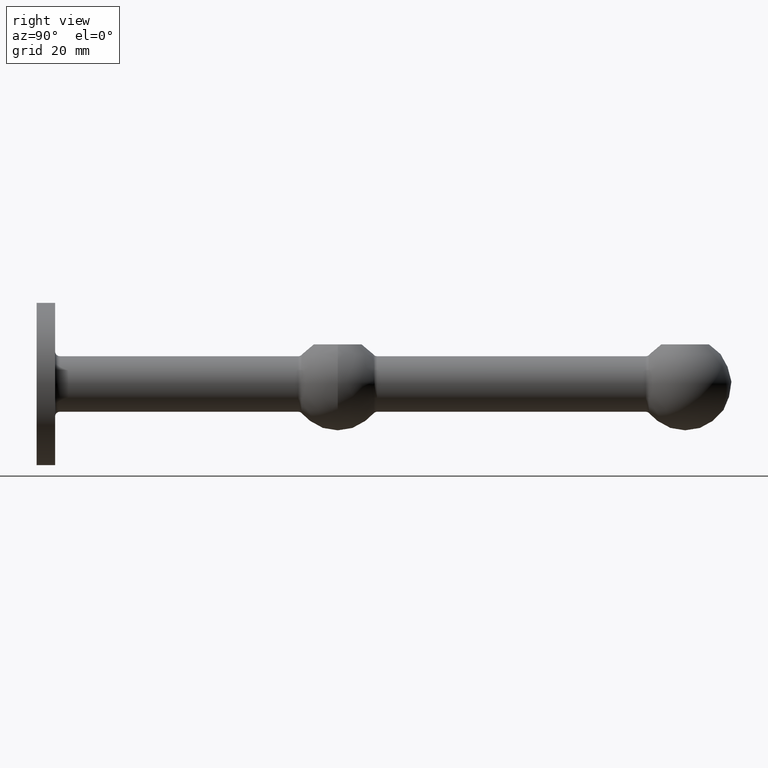
[diagram: clean part render]
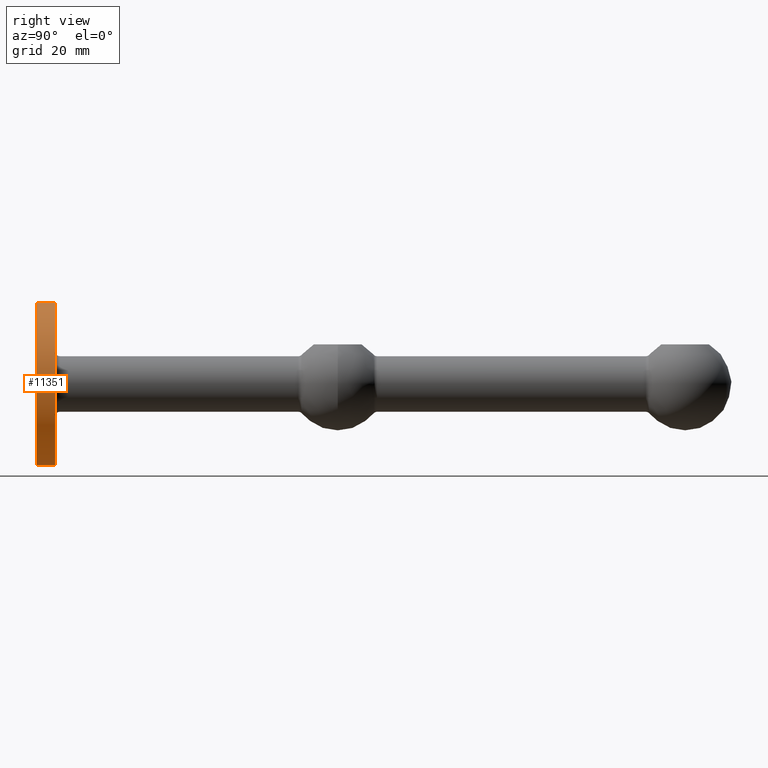
[diagram: same view with one face highlighted and labeled with its STEP entity id]
A machine part, right view. The second image highlights one B-rep face of the part: STEP entity #11351.
In plain terms, the highlighted cylindrical surface (bore or boss wall) has radius 17.5 mm, axis along (-0, -1, -0).
Its self-contained STEP definition (entity closure, byte-faithful):
#550 = CARTESIAN_POINT ( 'NONE',  ( 0.000000000000000000, 4.000000000000000000, 17.50000000000000000 ) ) ;
#689 = CIRCLE ( 'NONE', #3505, 17.50000000000000000 ) ;
#930 = EDGE_CURVE ( 'NONE', #3961, #3961, #7943, .T. ) ;
#957 = DIRECTION ( 'NONE',  ( 0.000000000000000000, 1.000000000000000000, 0.000000000000000000 ) ) ;
#1687 = VERTEX_POINT ( 'NONE', #550 ) ;
#3195 = AXIS2_PLACEMENT_3D ( 'NONE', #4012, #6957, #10913 ) ;
#3318 = ORIENTED_EDGE ( 'NONE', *, *, #10772, .F. ) ;
#3505 = AXIS2_PLACEMENT_3D ( 'NONE', #10791, #957, #11720 ) ;
#3853 = AXIS2_PLACEMENT_3D ( 'NONE', #9791, #11712, #8763 ) ;
#3961 = VERTEX_POINT ( 'NONE', #9977 ) ;
#4012 = CARTESIAN_POINT ( 'NONE',  ( 0.000000000000000000, 4.000000000000000000, 0.000000000000000000 ) ) ;
#5023 = FACE_OUTER_BOUND ( 'NONE', #12204, .T. ) ;
#6957 = DIRECTION ( 'NONE',  ( -0.000000000000000000, -1.000000000000000000, -0.000000000000000000 ) ) ;
#7943 = CIRCLE ( 'NONE', #3853, 17.50000000000000000 ) ;
#8763 = DIRECTION ( 'NONE',  ( 0.000000000000000000, 0.000000000000000000, 1.000000000000000000 ) ) ;
#9791 = CARTESIAN_POINT ( 'NONE',  ( 0.000000000000000000, 0.000000000000000000, 0.000000000000000000 ) ) ;
#9837 = ORIENTED_EDGE ( 'NONE', *, *, #930, .T. ) ;
#9917 = CYLINDRICAL_SURFACE ( 'NONE', #3195, 17.50000000000000000 ) ;
#9977 = CARTESIAN_POINT ( 'NONE',  ( 0.000000000000000000, 0.000000000000000000, 17.50000000000000000 ) ) ;
#10772 = EDGE_CURVE ( 'NONE', #1687, #1687, #689, .T. ) ;
#10791 = CARTESIAN_POINT ( 'NONE',  ( 0.000000000000000000, 4.000000000000000000, 0.000000000000000000 ) ) ;
#10913 = DIRECTION ( 'NONE',  ( 0.000000000000000000, 0.000000000000000000, -1.000000000000000000 ) ) ;
#11351 = ADVANCED_FACE ( 'NONE', ( #5023, #11910 ), #9917, .T. ) ;
#11499 = EDGE_LOOP ( 'NONE', ( #9837 ) ) ;
#11712 = DIRECTION ( 'NONE',  ( 0.000000000000000000, 1.000000000000000000, 0.000000000000000000 ) ) ;
#11720 = DIRECTION ( 'NONE',  ( 0.000000000000000000, 0.000000000000000000, 1.000000000000000000 ) ) ;
#11910 = FACE_OUTER_BOUND ( 'NONE', #11499, .T. ) ;
#12204 = EDGE_LOOP ( 'NONE', ( #3318 ) ) ;